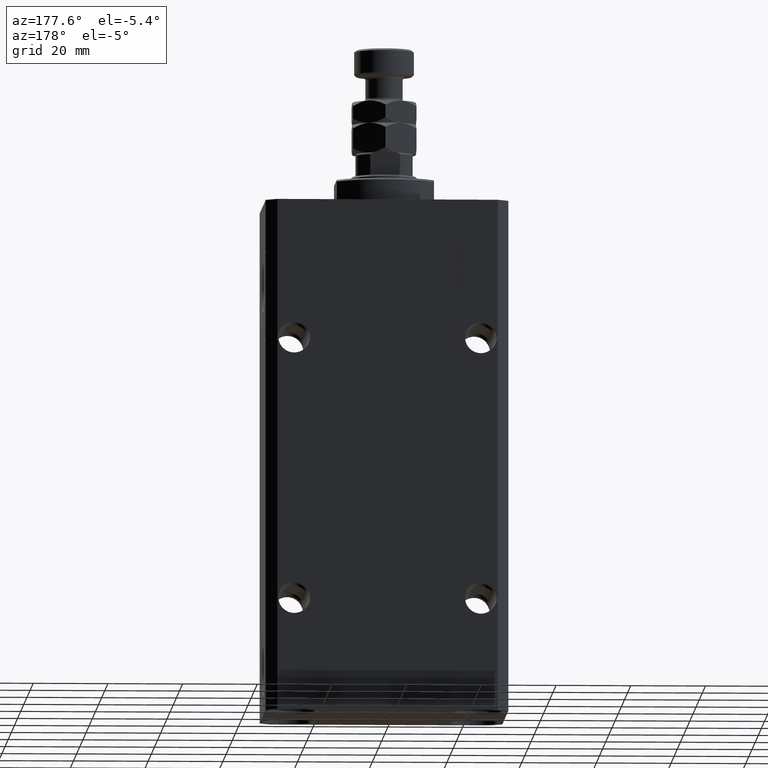
[diagram: clean part render]
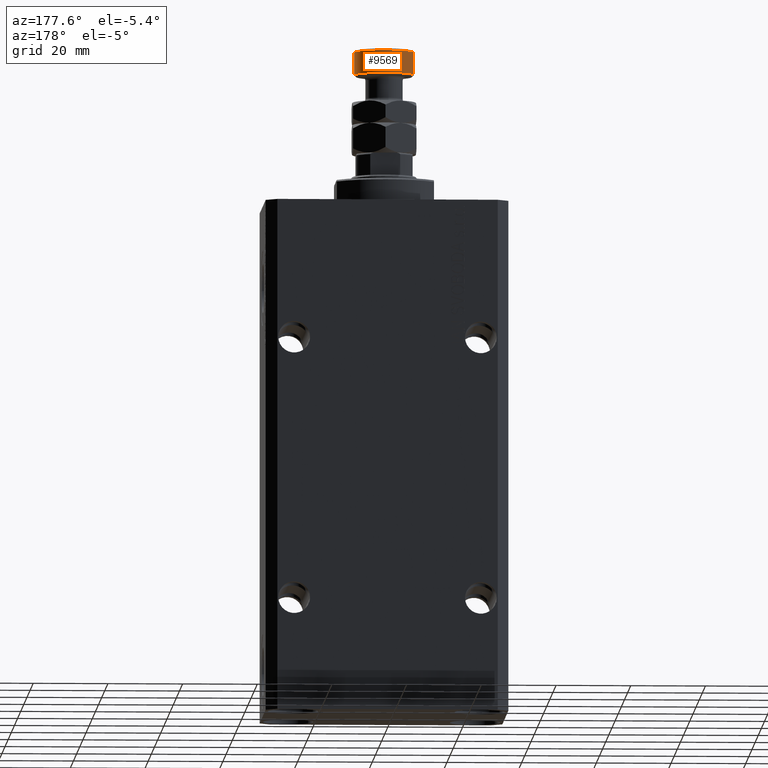
[diagram: same view with one face highlighted and labeled with its STEP entity id]
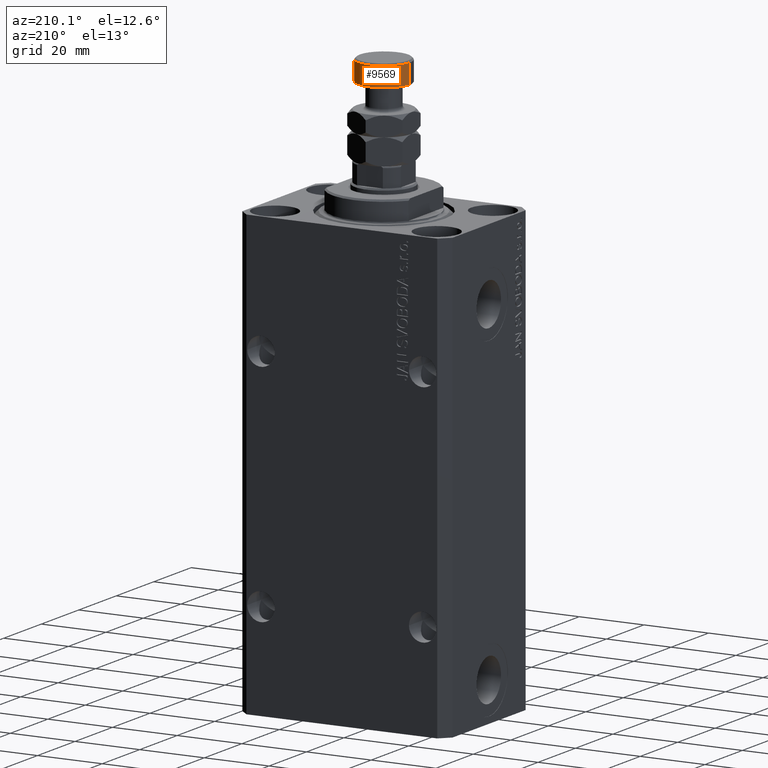
[diagram: same view with one face highlighted and labeled with its STEP entity id]
A machine part, auxiliary view. The second image highlights one B-rep face of the part: STEP entity #9569.
A second angle (auxiliary view) of the same face is appended — the face is thin or edge-on in the first view.
In plain terms, the highlighted cylindrical surface (edge-blend (fillet) strip) has radius 8 mm, axis along (-0, -0, -1).
Its self-contained STEP definition (entity closure, byte-faithful):
#953 = AXIS2_PLACEMENT_3D ( 'NONE', #28333, #46239, #24758 ) ;
#2340 = VERTEX_POINT ( 'NONE', #33660 ) ;
#3075 = FACE_OUTER_BOUND ( 'NONE', #26262, .T. ) ;
#5771 = ORIENTED_EDGE ( 'NONE', *, *, #17925, .T. ) ;
#6338 = LINE ( 'NONE', #21335, #41612 ) ;
#7540 = CARTESIAN_POINT ( 'NONE',  ( -8.000000000000000000, 0.000000000000000000, 27.50000000000000000 ) ) ;
#8955 = LINE ( 'NONE', #23487, #43062 ) ;
#9569 = ADVANCED_FACE ( 'NONE', ( #3075 ), #9740, .T. ) ;
#9740 = CYLINDRICAL_SURFACE ( 'NONE', #953, 8.000000000000000000 ) ;
#10153 = ORIENTED_EDGE ( 'NONE', *, *, #27767, .T. ) ;
#11160 = CIRCLE ( 'NONE', #18794, 8.000000000000000000 ) ;
#14193 = CARTESIAN_POINT ( 'NONE',  ( -8.000000000000000000, 0.000000000000000000, 21.50000000000000711 ) ) ;
#17925 = EDGE_CURVE ( 'NONE', #18889, #2340, #6338, .T. ) ;
#18570 = ORIENTED_EDGE ( 'NONE', *, *, #19919, .F. ) ;
#18794 = AXIS2_PLACEMENT_3D ( 'NONE', #27702, #42260, #19854 ) ;
#18889 = VERTEX_POINT ( 'NONE', #26883 ) ;
#19854 = DIRECTION ( 'NONE',  ( 1.000000000000000000, 0.000000000000000000, 0.000000000000000000 ) ) ;
#19919 = EDGE_CURVE ( 'NONE', #21883, #25566, #8955, .T. ) ;
#21335 = CARTESIAN_POINT ( 'NONE',  ( 8.000000000000000000, 9.797174393178825657E-16, 28.00000000000000000 ) ) ;
#21693 = ORIENTED_EDGE ( 'NONE', *, *, #22381, .T. ) ;
#21883 = VERTEX_POINT ( 'NONE', #7540 ) ;
#22381 = EDGE_CURVE ( 'NONE', #21883, #18889, #11160, .T. ) ;
#23487 = CARTESIAN_POINT ( 'NONE',  ( -8.000000000000000000, 0.000000000000000000, 28.00000000000000000 ) ) ;
#24027 = DIRECTION ( 'NONE',  ( 1.000000000000000000, 0.000000000000000000, 0.000000000000000000 ) ) ;
#24735 = DIRECTION ( 'NONE',  ( -0.000000000000000000, -0.000000000000000000, 1.000000000000000000 ) ) ;
#24758 = DIRECTION ( 'NONE',  ( -1.000000000000000000, 0.000000000000000000, 0.000000000000000000 ) ) ;
#25566 = VERTEX_POINT ( 'NONE', #14193 ) ;
#26262 = EDGE_LOOP ( 'NONE', ( #21693, #5771, #10153, #18570 ) ) ;
#26883 = CARTESIAN_POINT ( 'NONE',  ( 8.000000000000000000, 9.797174393178825657E-16, 27.50000000000000000 ) ) ;
#27702 = CARTESIAN_POINT ( 'NONE',  ( 0.000000000000000000, 0.000000000000000000, 27.50000000000000000 ) ) ;
#27767 = EDGE_CURVE ( 'NONE', #2340, #25566, #41045, .T. ) ;
#28333 = CARTESIAN_POINT ( 'NONE',  ( 0.000000000000000000, 0.000000000000000000, 28.00000000000000000 ) ) ;
#31611 = DIRECTION ( 'NONE',  ( -0.000000000000000000, -0.000000000000000000, -1.000000000000000000 ) ) ;
#33660 = CARTESIAN_POINT ( 'NONE',  ( 8.000000000000000000, 9.797174393178825657E-16, 21.50000000000000711 ) ) ;
#35710 = CARTESIAN_POINT ( 'NONE',  ( 0.000000000000000000, 0.000000000000000000, 21.50000000000000711 ) ) ;
#38052 = DIRECTION ( 'NONE',  ( -0.000000000000000000, -0.000000000000000000, -1.000000000000000000 ) ) ;
#41045 = CIRCLE ( 'NONE', #44864, 8.000000000000000000 ) ;
#41612 = VECTOR ( 'NONE', #31611, 1000.000000000000000 ) ;
#42260 = DIRECTION ( 'NONE',  ( 0.000000000000000000, 0.000000000000000000, -1.000000000000000000 ) ) ;
#43062 = VECTOR ( 'NONE', #38052, 1000.000000000000000 ) ;
#44864 = AXIS2_PLACEMENT_3D ( 'NONE', #35710, #24735, #24027 ) ;
#46239 = DIRECTION ( 'NONE',  ( -0.000000000000000000, -0.000000000000000000, -1.000000000000000000 ) ) ;